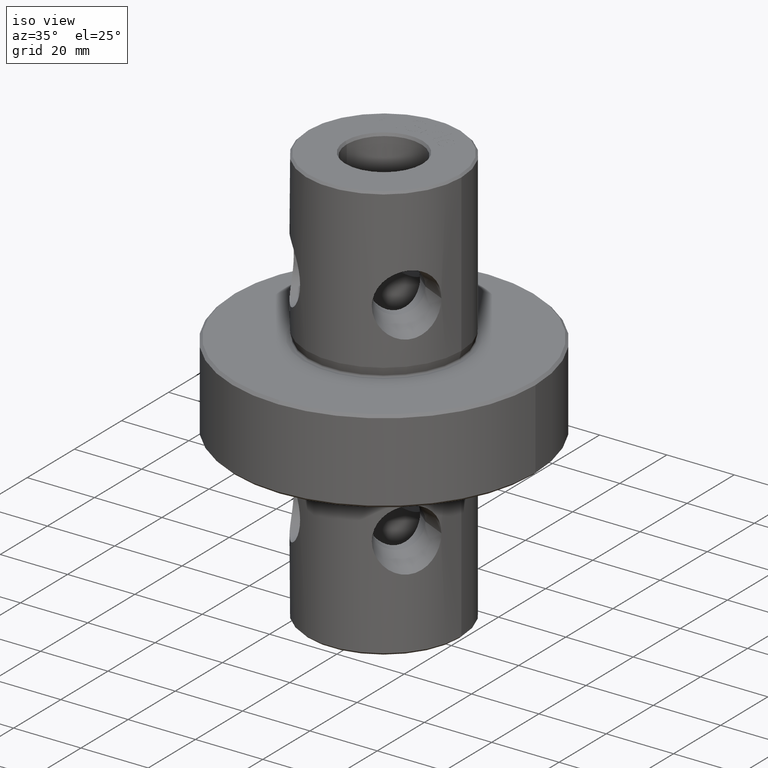
[diagram: clean part render]
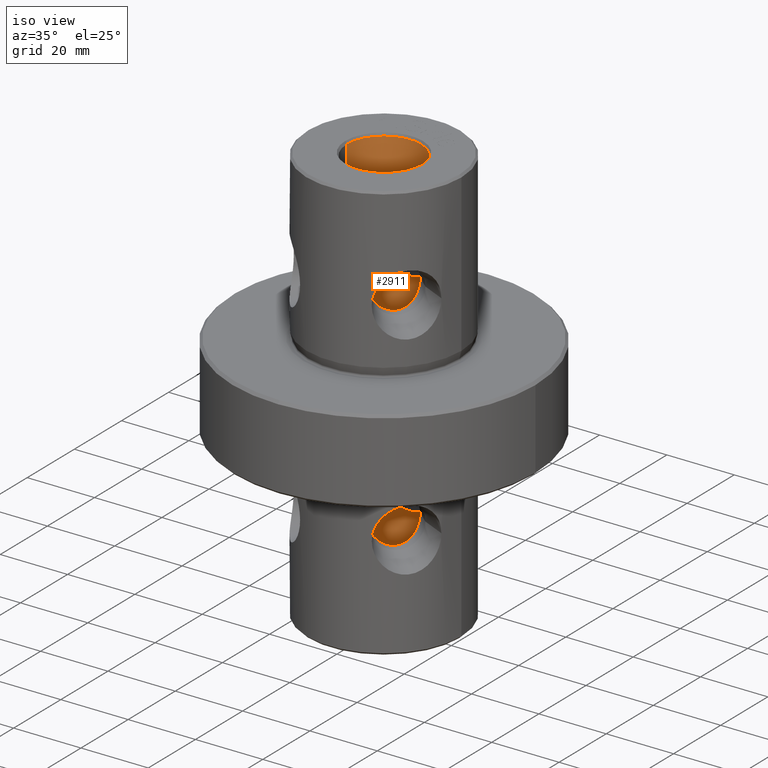
[diagram: same view with one face highlighted and labeled with its STEP entity id]
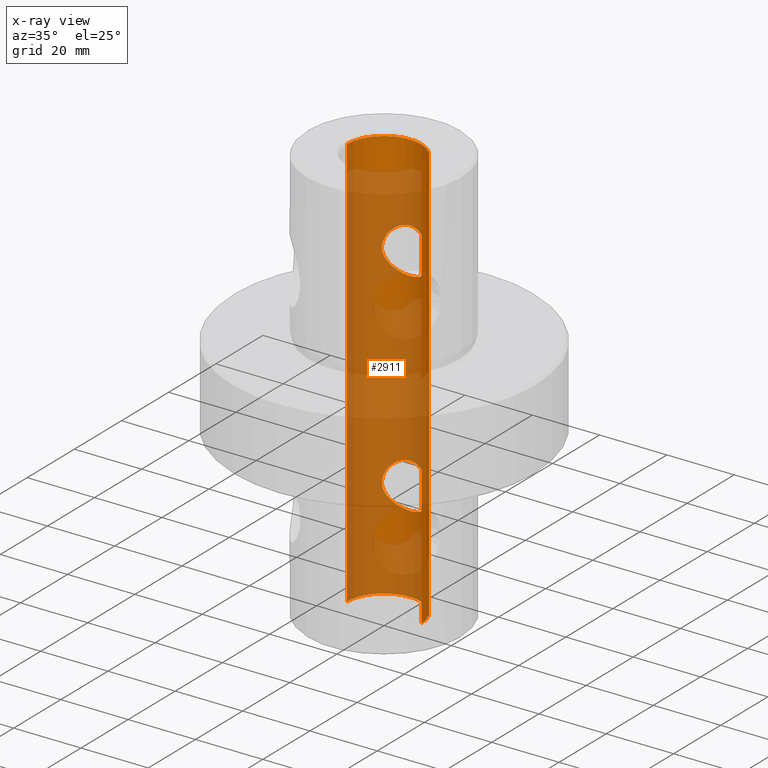
[diagram: x-ray of the same camera — body ghosted, the highlighted face saturated]
A machine part, iso view. The second image highlights one B-rep face of the part: STEP entity #2911.
The next image is the same camera in x-ray: the body ghosted, the highlighted face saturated — about 79% of this face is hidden behind the body in this view.
In plain terms, the highlighted cylindrical surface (partial cylindrical patch) has radius 11.05 mm, axis along (-0, -0, 1).
Its self-contained STEP definition (entity closure, byte-faithful):
#1215=VERTEX_POINT('NONE',#3573);
#1313=EDGE_CURVE('NONE',#1215,#1707,#3687,.T.);
#1363=VERTEX_POINT('NONE',#3743);
#1581=EDGE_CURVE('NONE',#2145,#2787,#3978,.T.);
#1623=VERTEX_POINT('NONE',#4022);
#1645=EDGE_CURVE('NONE',#2639,#2145,#4045,.T.);
#1707=VERTEX_POINT('NONE',#4113);
#1731=EDGE_CURVE('NONE',#1623,#3281,#4140,.T.);
#1925=EDGE_CURVE('NONE',#3281,#1623,#4350,.T.);
#2145=VERTEX_POINT('NONE',#4590);
#2383=EDGE_CURVE('NONE',#2639,#1363,#4864,.T.);
#2399=EDGE_CURVE('NONE',#1707,#1215,#4883,.T.);
#2639=VERTEX_POINT('NONE',#5142);
#2783=EDGE_CURVE('NONE',#1363,#2787,#5311,.T.);
#2787=VERTEX_POINT('NONE',#5316);
#2911=ADVANCED_FACE('NONE',(#5456,#5457,#5458),#5459,.F.);
#3281=VERTEX_POINT('NONE',#5868);
#3573=CARTESIAN_POINT('',(6.75000000000003,8.74871419123973,-30.65));
#3687=B_SPLINE_CURVE_WITH_KNOTS('',3,(#6803,#6804,#6805,#6806,#6807,#6808,#6809,#6810,#6811,#6812,#6813,#6814,#6815,#6816,#6817,#6818,#6819,#6820,#6821,#6822,#6823,#6824,#6825,#6826,#6827,#6828,#6829,#6830,#6831,#6832,#6833,#6834,#6835,#6836,#6837,#6838,#6839,#6840,#6841,#6842,#6843,#6844,#6845,#6846),.UNSPECIFIED.,.F.,.F.,(4,2,2,2,2,2,2,2,2,2,2,2,2,2,2,2,2,2,2,2,2,4),(0.0,0.00135433821354867,0.00270867642709734,0.00406301464064601,0.00541735285419468,0.00609452196096903,0.00677169106774337,0.00812602928129207,0.00948036749484076,0.0108347057083895,0.0115118748151638,0.0121890439219382,0.0128662130287125,0.0135433821354869,0.0148977203490356,0.0162520585625842,0.0169292276693586,0.017606396776133,0.0189607349896817,0.019637904096456,0.0203150732032304,0.021669411416779),.UNSPECIFIED.);
#3743=CARTESIAN_POINT('',(-11.05,3.99340811612324E-014,-123.620577136594));
#3978=CIRCLE('',#7991,11.05);
#4022=CARTESIAN_POINT('',(6.75000000000003,8.74871419123973,-93.75));
#4045=LINE('',#8259,#8260);
#4113=CARTESIAN_POINT('',(-6.74999999999997,8.74871419123978,-30.65));
#4140=B_SPLINE_CURVE_WITH_KNOTS('',3,(#8675,#8676,#8677,#8678,#8679,#8680,#8681,#8682,#8683,#8684,#8685,#8686,#8687,#8688,#8689,#8690,#8691,#8692,#8693,#8694,#8695,#8696,#8697,#8698,#8699,#8700,#8701,#8702,#8703,#8704,#8705,#8706,#8707,#8708,#8709,#8710,#8711,#8712,#8713,#8714,#8715,#8716,#8717,#8718),.UNSPECIFIED.,.F.,.F.,(4,2,2,2,2,2,2,2,2,2,2,2,2,2,2,2,2,2,2,2,2,4),(0.0,0.00135433821354867,0.00270867642709735,0.00406301464064603,0.0054173528541947,0.00609452196096904,0.00677169106774338,0.00812602928129205,0.00948036749484073,0.0108347057083894,0.0115118748151637,0.0121890439219381,0.0128662130287124,0.0135433821354868,0.0148977203490355,0.0162520585625841,0.0169292276693585,0.0176063967761329,0.0189607349896816,0.019637904096456,0.0203150732032303,0.021669411416779),.UNSPECIFIED.);
#4350=B_SPLINE_CURVE_WITH_KNOTS('',3,(#9548,#9549,#9550,#9551,#9552,#9553,#9554,#9555,#9556,#9557,#9558,#9559,#9560,#9561,#9562,#9563,#9564,#9565,#9566,#9567,#9568,#9569,#9570,#9571,#9572,#9573,#9574,#9575,#9576,#9577,#9578,#9579,#9580,#9581,#9582,#9583,#9584,#9585,#9586,#9587,#9588,#9589,#9590,#9591,#9592,#9593,#9594,#9595,#9596,#9597,#9598,#9599),.UNSPECIFIED.,.F.,.F.,(4,2,2,2,2,2,2,2,2,2,2,2,2,2,2,2,2,2,2,2,2,2,2,2,2,4),(0.021669411416779,0.0230204077607683,0.0236959059327629,0.0243714041047575,0.0250469022767521,0.0257224004487468,0.027073396792736,0.0277488949647306,0.0284243931367252,0.0297753894807145,0.0304508876527092,0.0311263858247038,0.0318018839966985,0.0324773821686931,0.0338283785126824,0.0345038766846771,0.0351793748566717,0.0358548730286664,0.036530371200661,0.0378813675446503,0.0392323638886396,0.0405833602326289,0.0412588584046235,0.0419343565766181,0.0426098547486128,0.0432853529206074),.UNSPECIFIED.);
#4590=CARTESIAN_POINT('',(11.05,-3.85808911402586E-014,-0.779422863406011));
#4864=CIRCLE('',#11421,11.05);
#4883=B_SPLINE_CURVE_WITH_KNOTS('',3,(#11482,#11483,#11484,#11485,#11486,#11487,#11488,#11489,#11490,#11491,#11492,#11493,#11494,#11495,#11496,#11497,#11498,#11499,#11500,#11501,#11502,#11503,#11504,#11505,#11506,#11507,#11508,#11509,#11510,#11511,#11512,#11513,#11514,#11515,#11516,#11517,#11518,#11519,#11520,#11521,#11522,#11523,#11524,#11525,#11526,#11527,#11528,#11529,#11530,#11531,#11532,#11533),.UNSPECIFIED.,.F.,.F.,(4,2,2,2,2,2,2,2,2,2,2,2,2,2,2,2,2,2,2,2,2,2,2,2,2,4),(0.021669411416779,0.0230204077607683,0.023695905932763,0.0243714041047576,0.0250469022767522,0.0257224004487469,0.0270733967927361,0.0277488949647308,0.0284243931367254,0.0297753894807147,0.0304508876527093,0.0311263858247039,0.0318018839966986,0.0324773821686932,0.0338283785126825,0.0345038766846771,0.0351793748566718,0.0358548730286664,0.036530371200661,0.0378813675446503,0.0392323638886396,0.0405833602326289,0.0412588584046235,0.0419343565766182,0.0426098547486128,0.0432853529206074),.UNSPECIFIED.);
#5142=CARTESIAN_POINT('',(11.05,-3.85808911402587E-014,-123.620577136594));
#5311=LINE('',#13177,#13178);
#5316=CARTESIAN_POINT('',(-11.05,3.99340811612324E-014,-0.779422863406011));
#5456=FACE_OUTER_BOUND('',#13635,.T.);
#5457=FACE_BOUND('',#13636,.T.);
#5458=FACE_BOUND('',#13637,.T.);
#5459=CYLINDRICAL_SURFACE('',#13638,11.05);
#5868=CARTESIAN_POINT('',(-6.74999999999997,8.74871419123978,-93.75));
#6803=CARTESIAN_POINT('',(6.75000000000003,8.74871419123973,-30.65));
#6804=CARTESIAN_POINT('',(6.75000000000003,8.74871419123973,-31.1093032507101));
#6805=CARTESIAN_POINT('',(6.70365411235101,8.78498301367152,-31.5575821176852));
#6806=CARTESIAN_POINT('',(6.52521476693981,8.91832255829808,-32.434448375183));
#6807=CARTESIAN_POINT('',(6.39087208609653,9.01674489520066,-32.8662118728981));
#6808=CARTESIAN_POINT('',(6.05036425181151,9.24867703762957,-33.674555092377));
#6809=CARTESIAN_POINT('',(5.84344996036251,9.3827402481259,-34.0566949969654));
#6810=CARTESIAN_POINT('',(5.35819049997128,9.66806684756988,-34.7781076545588));
#6811=CARTESIAN_POINT('',(5.08571584922576,9.81584281525766,-35.1089303824567));
#6812=CARTESIAN_POINT('',(4.63161861117797,10.0338827484089,-35.5649390132794));
#6813=CARTESIAN_POINT('',(4.47262189431976,10.1059919285986,-35.7101608334305));
#6814=CARTESIAN_POINT('',(4.13842642155713,10.2473824083912,-35.9869467884822));
#6815=CARTESIAN_POINT('',(3.9635104756998,10.3164748396929,-36.1181036135254));
#6816=CARTESIAN_POINT('',(3.42450740345641,10.512921700444,-36.4829699742582));
#6817=CARTESIAN_POINT('',(3.04299729120405,10.6309609401202,-36.6912790670368));
#6818=CARTESIAN_POINT('',(2.23129583275254,10.8304423700686,-37.0357814076927));
#6819=CARTESIAN_POINT('',(1.79572855637471,10.9121015964833,-37.1722030538891));
#6820=CARTESIAN_POINT('',(0.916756090440402,11.0208058040596,-37.3524870007319));
#6821=CARTESIAN_POINT('',(0.469259401233656,11.0494447036755,-37.3990909582581));
#6822=CARTESIAN_POINT('',(-0.214734588298091,11.0502657080224,-37.400434974408));
#6823=CARTESIAN_POINT('',(-0.444996981489803,11.0433533483597,-37.3891374188862));
#6824=CARTESIAN_POINT('',(-0.896602553931203,11.0158875879589,-37.3440346073539));
#6825=CARTESIAN_POINT('',(-1.11963761399988,10.995371590024,-37.310290075006));
#6826=CARTESIAN_POINT('',(-1.56036438688848,10.9415285846869,-37.2210208681785));
#6827=CARTESIAN_POINT('',(-1.77805571290106,10.9081995298503,-37.1654952896092));
#6828=CARTESIAN_POINT('',(-2.2081441647052,10.8293304709518,-37.0325747418246));
#6829=CARTESIAN_POINT('',(-2.41981732394933,10.7838427229062,-36.9552522697359));
#6830=CARTESIAN_POINT('',(-3.03303952149176,10.6339216790287,-36.6964915055138));
#6831=CARTESIAN_POINT('',(-3.41786829088659,10.5152153862525,-36.4871629891812));
#6832=CARTESIAN_POINT('',(-4.14347690989475,10.2510086025863,-35.9965778319672));
#6833=CARTESIAN_POINT('',(-4.47708237966504,10.1079809524145,-35.7197705575133));
#6834=CARTESIAN_POINT('',(-4.93178291037511,9.88980680888672,-35.2636864176021));
#6835=CARTESIAN_POINT('',(-5.07606918715406,9.81632295754302,-35.1045029741381));
#6836=CARTESIAN_POINT('',(-5.35025217452766,9.66961614897526,-34.7711499376196));
#6837=CARTESIAN_POINT('',(-5.48046117787266,9.59617732430214,-34.5963584565822));
#6838=CARTESIAN_POINT('',(-5.84226672205079,9.38342769966806,-34.0584041292734));
#6839=CARTESIAN_POINT('',(-6.04795006051818,9.25025056100881,-33.6791702487142));
#6840=CARTESIAN_POINT('',(-6.30308148561069,9.07657686739571,-33.0751663588928));
#6841=CARTESIAN_POINT('',(-6.37914504593619,9.02306552797484,-32.8679220747593));
#6842=CARTESIAN_POINT('',(-6.51214545251241,8.92755087605453,-32.4401484441572));
#6843=CARTESIAN_POINT('',(-6.56836012549438,8.88607322961018,-32.2215020649168));
#6844=CARTESIAN_POINT('',(-6.70329649520565,8.7852674869967,-31.5611586087256));
#6845=CARTESIAN_POINT('',(-6.74999999999997,8.74871419123977,-31.1089861007965));
#6846=CARTESIAN_POINT('',(-6.74999999999997,8.74871419123978,-30.65));
#7991=AXIS2_PLACEMENT_3D('',#16152,#16153,#16154);
#8259=CARTESIAN_POINT('',(11.05,-3.85808911402587E-014,0.0));
#8260=VECTOR('',#16183,1000.0);
#8675=CARTESIAN_POINT('',(6.75000000000003,8.74871419123973,-93.75));
#8676=CARTESIAN_POINT('',(6.75000000000003,8.74871419123973,-94.2093032507101));
#8677=CARTESIAN_POINT('',(6.70365411235101,8.78498301367152,-94.6575821176852));
#8678=CARTESIAN_POINT('',(6.52521476693981,8.91832255829809,-95.534448375183));
#8679=CARTESIAN_POINT('',(6.39087208609653,9.01674489520067,-95.9662118728981));
#8680=CARTESIAN_POINT('',(6.05036425181151,9.24867703762957,-96.774555092377));
#8681=CARTESIAN_POINT('',(5.84344996036251,9.3827402481259,-97.1566949969654));
#8682=CARTESIAN_POINT('',(5.35819049997128,9.66806684756988,-97.8781076545588));
#8683=CARTESIAN_POINT('',(5.08571584922576,9.81584281525767,-98.2089303824567));
#8684=CARTESIAN_POINT('',(4.63161861117797,10.0338827484089,-98.6649390132794));
#8685=CARTESIAN_POINT('',(4.47262189431977,10.1059919285986,-98.8101608334306));
#8686=CARTESIAN_POINT('',(4.13842642155713,10.2473824083912,-99.0869467884822));
#8687=CARTESIAN_POINT('',(3.96351047569981,10.3164748396929,-99.2181036135254));
#8688=CARTESIAN_POINT('',(3.42450740345642,10.512921700444,-99.5829699742582));
#8689=CARTESIAN_POINT('',(3.04299729120405,10.6309609401202,-99.7912790670368));
#8690=CARTESIAN_POINT('',(2.23129583275253,10.8304423700686,-100.135781407693));
#8691=CARTESIAN_POINT('',(1.79572855637471,10.9121015964833,-100.272203053889));
#8692=CARTESIAN_POINT('',(0.916756090440401,11.0208058040596,-100.452487000732));
#8693=CARTESIAN_POINT('',(0.469259401233657,11.0494447036755,-100.499090958258));
#8694=CARTESIAN_POINT('',(-0.214734588298089,11.0502657080224,-100.500434974408));
#8695=CARTESIAN_POINT('',(-0.444996981489802,11.0433533483597,-100.489137418886));
#8696=CARTESIAN_POINT('',(-0.896602553931203,11.0158875879589,-100.444034607354));
#8697=CARTESIAN_POINT('',(-1.11963761399988,10.995371590024,-100.410290075006));
#8698=CARTESIAN_POINT('',(-1.56036438688848,10.9415285846869,-100.321020868179));
#8699=CARTESIAN_POINT('',(-1.77805571290106,10.9081995298503,-100.265495289609));
#8700=CARTESIAN_POINT('',(-2.2081441647052,10.8293304709518,-100.132574741825));
#8701=CARTESIAN_POINT('',(-2.41981732394932,10.7838427229062,-100.055252269736));
#8702=CARTESIAN_POINT('',(-3.03303952149176,10.6339216790287,-99.7964915055138));
#8703=CARTESIAN_POINT('',(-3.41786829088659,10.5152153862525,-99.5871629891812));
#8704=CARTESIAN_POINT('',(-4.14347690989475,10.2510086025863,-99.0965778319672));
#8705=CARTESIAN_POINT('',(-4.47708237966503,10.1079809524145,-98.8197705575133));
#8706=CARTESIAN_POINT('',(-4.93178291037511,9.88980680888672,-98.363686417602));
#8707=CARTESIAN_POINT('',(-5.07606918715407,9.81632295754302,-98.2045029741381));
#8708=CARTESIAN_POINT('',(-5.35025217452766,9.66961614897526,-97.8711499376196));
#8709=CARTESIAN_POINT('',(-5.48046117787266,9.59617732430213,-97.6963584565822));
#8710=CARTESIAN_POINT('',(-5.84226672205079,9.38342769966806,-97.1584041292734));
#8711=CARTESIAN_POINT('',(-6.04795006051818,9.2502505610088,-96.7791702487142));
#8712=CARTESIAN_POINT('',(-6.30308148561069,9.07657686739571,-96.1751663588929));
#8713=CARTESIAN_POINT('',(-6.37914504593619,9.02306552797484,-95.9679220747592));
#8714=CARTESIAN_POINT('',(-6.51214545251241,8.92755087605453,-95.5401484441572));
#8715=CARTESIAN_POINT('',(-6.56836012549438,8.88607322961018,-95.3215020649169));
#8716=CARTESIAN_POINT('',(-6.70329649520564,8.7852674869967,-94.6611586087256));
#8717=CARTESIAN_POINT('',(-6.74999999999997,8.74871419123977,-94.2089861007965));
#8718=CARTESIAN_POINT('',(-6.74999999999997,8.74871419123978,-93.75));
#9548=CARTESIAN_POINT('',(-6.74999999999997,8.74871419123978,-93.75));
#9549=CARTESIAN_POINT('',(-6.74999999999997,8.74871419123977,-93.2921464609692));
#9550=CARTESIAN_POINT('',(-6.70392584879747,8.78478116349569,-92.8436252858119));
#9551=CARTESIAN_POINT('',(-6.56957396456771,8.88517435919211,-92.1836005773598));
#9552=CARTESIAN_POINT('',(-6.51338383425811,8.92664234114865,-91.9644802761671));
#9553=CARTESIAN_POINT('',(-6.38130307347825,9.02153443398514,-91.5383895593961));
#9554=CARTESIAN_POINT('',(-6.30551817773151,9.07488559622406,-91.3311148883286));
#9555=CARTESIAN_POINT('',(-6.13526586061361,9.19084440592085,-90.9270445464448));
#9556=CARTESIAN_POINT('',(-6.04079526006861,9.25345548636503,-90.7302511849159));
#9557=CARTESIAN_POINT('',(-5.8332034284793,9.38570101666273,-90.3464976799998));
#9558=CARTESIAN_POINT('',(-5.71989203730983,9.45541680978885,-90.1594603683834));
#9559=CARTESIAN_POINT('',(-5.35806519858202,9.66808797999979,-89.6220227245651));
#9560=CARTESIAN_POINT('',(-5.08614405305739,9.81566635654244,-89.2914001465877));
#9561=CARTESIAN_POINT('',(-4.63023847751039,10.0345308051366,-88.8337249734472));
#9562=CARTESIAN_POINT('',(-4.46934397649388,10.1074335774935,-88.6869709151399));
#9563=CARTESIAN_POINT('',(-4.13597471578457,10.2483638818133,-88.4111787588689));
#9564=CARTESIAN_POINT('',(-3.96331171573247,10.3165336056738,-88.2817945372216));
#9565=CARTESIAN_POINT('',(-3.42700384192282,10.5120391095013,-87.9186547328822));
#9566=CARTESIAN_POINT('',(-3.04526686034404,10.6304538749156,-87.709586751314));
#9567=CARTESIAN_POINT('',(-2.43120362301705,10.7812881374529,-87.449112399048));
#9568=CARTESIAN_POINT('',(-2.21958713131836,10.8269515053903,-87.3714632272066));
#9569=CARTESIAN_POINT('',(-1.79345113180696,10.9056397781794,-87.2387918607057));
#9570=CARTESIAN_POINT('',(-1.57753828708274,10.9390347986754,-87.1831309496352));
#9571=CARTESIAN_POINT('',(-1.13993385154805,10.9932552134452,-87.0932029484184));
#9572=CARTESIAN_POINT('',(-0.91824283151467,11.0140828356283,-87.0589343345454));
#9573=CARTESIAN_POINT('',(-0.468839129249067,11.0423448813463,-87.0125138584233));
#9574=CARTESIAN_POINT('',(-0.239570971098975,11.0497671330173,-87.0003812121886));
#9575=CARTESIAN_POINT('',(0.446162965300382,11.0504493295433,-86.9992644302806));
#9576=CARTESIAN_POINT('',(0.895442796851463,11.0226483484476,-87.0444911192897));
#9577=CARTESIAN_POINT('',(1.55815299872742,10.9418546342267,-87.1784361815101));
#9578=CARTESIAN_POINT('',(1.77843565227871,10.9081372314723,-87.2346089594946));
#9579=CARTESIAN_POINT('',(2.20848607132539,10.8292603857646,-87.3675441205789));
#9580=CARTESIAN_POINT('',(2.41772328411965,10.7843006504669,-87.4439677453962));
#9581=CARTESIAN_POINT('',(2.82539159872493,10.684740928637,-87.6157852182587));
#9582=CARTESIAN_POINT('',(3.02382042786028,10.6301367917901,-87.7111818406353));
#9583=CARTESIAN_POINT('',(3.41029227810011,10.5125260889115,-87.9207014727544));
#9584=CARTESIAN_POINT('',(3.59918415242297,10.4491839019247,-88.0354517328086));
#9585=CARTESIAN_POINT('',(4.14194812125327,10.2515876271933,-88.4023351259361));
#9586=CARTESIAN_POINT('',(4.47347736123258,10.109608727003,-88.6769608717511));
#9587=CARTESIAN_POINT('',(5.08154500431586,9.81804912819587,-89.2861870483501));
#9588=CARTESIAN_POINT('',(5.35850191079498,9.66780941889373,-89.6228030790839));
#9589=CARTESIAN_POINT('',(5.83877601504881,9.38556212137207,-90.3359127430448));
#9590=CARTESIAN_POINT('',(6.04521533796465,9.25207578356109,-90.7149253693754));
#9591=CARTESIAN_POINT('',(6.30247088186794,9.07701049244666,-91.3231064285463));
#9592=CARTESIAN_POINT('',(6.37957927101013,9.02275421101848,-91.5334570005165));
#9593=CARTESIAN_POINT('',(6.51180496628292,8.92779487379984,-91.958773988366));
#9594=CARTESIAN_POINT('',(6.56743567121245,8.88675659502883,-92.1747316244752));
#9595=CARTESIAN_POINT('',(6.65742717213531,8.8195417977646,-92.6136262946739));
#9596=CARTESIAN_POINT('',(6.6917908503831,8.79336610623766,-92.8365628348914));
#9597=CARTESIAN_POINT('',(6.73816038828568,8.75788483855195,-93.2899708469994));
#9598=CARTESIAN_POINT('',(6.75000000000003,8.74871419123973,-93.5209150468162));
#9599=CARTESIAN_POINT('',(6.75000000000003,8.74871419123973,-93.75));
#11421=AXIS2_PLACEMENT_3D('',#16917,#16918,#16919);
#11482=CARTESIAN_POINT('',(-6.74999999999997,8.74871419123978,-30.65));
#11483=CARTESIAN_POINT('',(-6.74999999999997,8.74871419123978,-30.1921464609692));
#11484=CARTESIAN_POINT('',(-6.70392584879747,8.78478116349569,-29.7436252858119));
#11485=CARTESIAN_POINT('',(-6.56957396456771,8.88517435919211,-29.0836005773599));
#11486=CARTESIAN_POINT('',(-6.51338383425811,8.92664234114865,-28.8644802761671));
#11487=CARTESIAN_POINT('',(-6.38130307347825,9.02153443398514,-28.4383895593961));
#11488=CARTESIAN_POINT('',(-6.30551817773151,9.07488559622406,-28.2311148883286));
#11489=CARTESIAN_POINT('',(-6.13526586061361,9.19084440592085,-27.8270445464448));
#11490=CARTESIAN_POINT('',(-6.04079526006861,9.25345548636503,-27.6302511849159));
#11491=CARTESIAN_POINT('',(-5.8332034284793,9.38570101666273,-27.2464976799998));
#11492=CARTESIAN_POINT('',(-5.71989203730983,9.45541680978885,-27.0594603683833));
#11493=CARTESIAN_POINT('',(-5.35806519858202,9.66808797999979,-26.5220227245651));
#11494=CARTESIAN_POINT('',(-5.08614405305739,9.81566635654244,-26.1914001465877));
#11495=CARTESIAN_POINT('',(-4.63023847751039,10.0345308051366,-25.7337249734472));
#11496=CARTESIAN_POINT('',(-4.46934397649388,10.1074335774935,-25.5869709151399));
#11497=CARTESIAN_POINT('',(-4.13597471578457,10.2483638818133,-25.3111787588689));
#11498=CARTESIAN_POINT('',(-3.96331171573247,10.3165336056738,-25.1817945372215));
#11499=CARTESIAN_POINT('',(-3.42700384192282,10.5120391095013,-24.8186547328822));
#11500=CARTESIAN_POINT('',(-3.04526686034404,10.6304538749156,-24.609586751314));
#11501=CARTESIAN_POINT('',(-2.43120362301705,10.7812881374529,-24.3491123990479));
#11502=CARTESIAN_POINT('',(-2.21958713131836,10.8269515053904,-24.2714632272066));
#11503=CARTESIAN_POINT('',(-1.79345113180696,10.9056397781794,-24.1387918607057));
#11504=CARTESIAN_POINT('',(-1.57753828708274,10.9390347986754,-24.0831309496352));
#11505=CARTESIAN_POINT('',(-1.13993385154805,10.9932552134452,-23.9932029484184));
#11506=CARTESIAN_POINT('',(-0.91824283151467,11.0140828356283,-23.9589343345454));
#11507=CARTESIAN_POINT('',(-0.468839129249066,11.0423448813463,-23.9125138584233));
#11508=CARTESIAN_POINT('',(-0.239570971098976,11.0497671330173,-23.9003812121886));
#11509=CARTESIAN_POINT('',(0.446162965300384,11.0504493295433,-23.8992644302806));
#11510=CARTESIAN_POINT('',(0.89544279685146,11.0226483484476,-23.9444911192897));
#11511=CARTESIAN_POINT('',(1.55815299872741,10.9418546342267,-24.0784361815101));
#11512=CARTESIAN_POINT('',(1.77843565227871,10.9081372314723,-24.1346089594945));
#11513=CARTESIAN_POINT('',(2.20848607132539,10.8292603857646,-24.2675441205789));
#11514=CARTESIAN_POINT('',(2.41772328411965,10.7843006504669,-24.3439677453961));
#11515=CARTESIAN_POINT('',(2.82539159872494,10.684740928637,-24.5157852182587));
#11516=CARTESIAN_POINT('',(3.02382042786028,10.6301367917901,-24.6111818406353));
#11517=CARTESIAN_POINT('',(3.41029227810012,10.5125260889115,-24.8207014727543));
#11518=CARTESIAN_POINT('',(3.59918415242298,10.4491839019247,-24.9354517328086));
#11519=CARTESIAN_POINT('',(4.14194812125327,10.2515876271933,-25.3023351259361));
#11520=CARTESIAN_POINT('',(4.47347736123258,10.109608727003,-25.5769608717511));
#11521=CARTESIAN_POINT('',(5.08154500431586,9.81804912819587,-26.1861870483501));
#11522=CARTESIAN_POINT('',(5.35850191079498,9.66780941889372,-26.5228030790838));
#11523=CARTESIAN_POINT('',(5.83877601504881,9.38556212137208,-27.2359127430448));
#11524=CARTESIAN_POINT('',(6.04521533796466,9.25207578356109,-27.6149253693754));
#11525=CARTESIAN_POINT('',(6.30247088186794,9.07701049244666,-28.2231064285464));
#11526=CARTESIAN_POINT('',(6.37957927101013,9.02275421101847,-28.4334570005165));
#11527=CARTESIAN_POINT('',(6.51180496628292,8.92779487379984,-28.8587739883659));
#11528=CARTESIAN_POINT('',(6.56743567121245,8.88675659502884,-29.0747316244752));
#11529=CARTESIAN_POINT('',(6.65742717213531,8.81954179776459,-29.5136262946738));
#11530=CARTESIAN_POINT('',(6.6917908503831,8.79336610623766,-29.7365628348913));
#11531=CARTESIAN_POINT('',(6.73816038828568,8.75788483855195,-30.1899708469993));
#11532=CARTESIAN_POINT('',(6.75000000000003,8.74871419123972,-30.4209150468162));
#11533=CARTESIAN_POINT('',(6.75000000000003,8.74871419123973,-30.65));
#13177=CARTESIAN_POINT('',(-11.05,3.99340811612324E-014,0.0));
#13178=VECTOR('',#17332,1000.0);
#13635=EDGE_LOOP('',(#17471,#17472,#17473,#17474));
#13636=EDGE_LOOP('',(#17475,#17476));
#13637=EDGE_LOOP('',(#17477,#17478));
#13638=AXIS2_PLACEMENT_3D('',#17479,#17480,#17481);
#16152=CARTESIAN_POINT('',(0.0,0.0,-0.779422863406011));
#16153=DIRECTION('',(0.0,0.0,1.0));
#16154=DIRECTION('',(1.0,-3.49148336110938E-015,-0.0));
#16183=DIRECTION('',(0.0,0.0,1.0));
#16917=CARTESIAN_POINT('',(0.0,0.0,-123.620577136594));
#16918=DIRECTION('',(0.0,0.0,1.0));
#16919=DIRECTION('',(1.0,-3.49148336110938E-015,-0.0));
#17332=DIRECTION('',(0.0,0.0,1.0));
#17471=ORIENTED_EDGE('',*,*,#2783,.F.);
#17472=ORIENTED_EDGE('',*,*,#2383,.F.);
#17473=ORIENTED_EDGE('',*,*,#1645,.T.);
#17474=ORIENTED_EDGE('',*,*,#1581,.T.);
#17475=ORIENTED_EDGE('',*,*,#1313,.T.);
#17476=ORIENTED_EDGE('',*,*,#2399,.T.);
#17477=ORIENTED_EDGE('',*,*,#1731,.T.);
#17478=ORIENTED_EDGE('',*,*,#1925,.T.);
#17479=CARTESIAN_POINT('',(0.0,0.0,0.0));
#17480=DIRECTION('',(-0.0,-0.0,1.0));
#17481=DIRECTION('',(1.0,-3.49148336110938E-015,0.0));